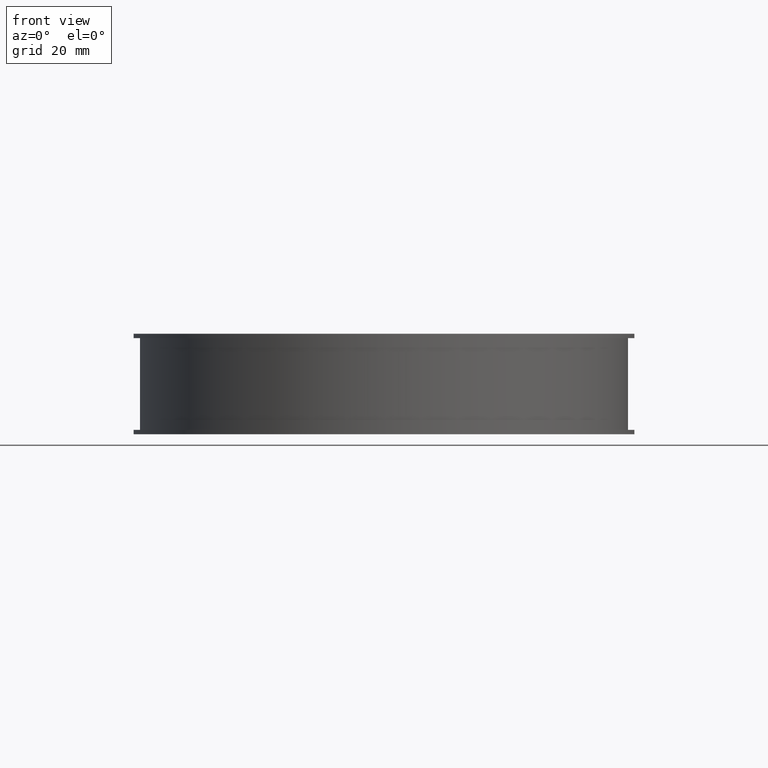
[diagram: clean part render]
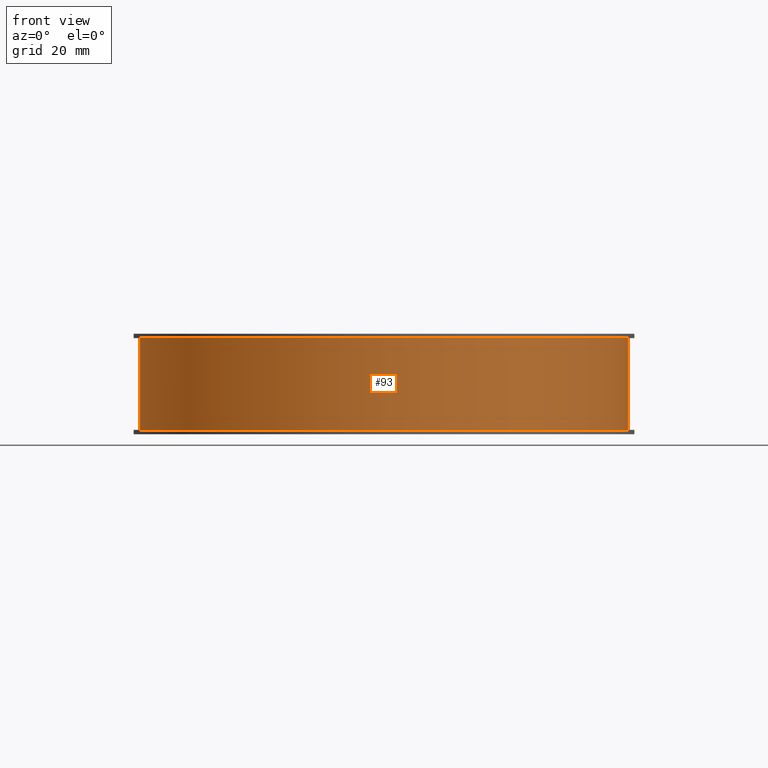
[diagram: same view with one face highlighted and labeled with its STEP entity id]
A machine part, front view. The second image highlights one B-rep face of the part: STEP entity #93.
In plain terms, the highlighted cylindrical surface (partial cylindrical patch) has radius 85.1 mm, axis along (0, 0, -1).
Its self-contained STEP definition (entity closure, byte-faithful):
#93 = ADVANCED_FACE( '', ( #138 ), #139, .T. );
#138 = FACE_OUTER_BOUND( '', #190, .T. );
#139 = CYLINDRICAL_SURFACE( '', #191, 85.1000000000000 );
#190 = EDGE_LOOP( '', ( #372, #373, #374, #375 ) );
#191 = AXIS2_PLACEMENT_3D( '', #376, #377, #378 );
#372 = ORIENTED_EDGE( '', *, *, #445, .F. );
#373 = ORIENTED_EDGE( '', *, *, #495, .F. );
#374 = ORIENTED_EDGE( '', *, *, #486, .T. );
#375 = ORIENTED_EDGE( '', *, *, #494, .T. );
#376 = CARTESIAN_POINT( '', ( 8.67361737988404E-016, 8.32667268468867E-014, -32.0000000000000 ) );
#377 = DIRECTION( '', ( 0.000000000000000, 0.000000000000000, -1.00000000000000 ) );
#378 = DIRECTION( '', ( -0.0900692840646651, -0.995935501961888, 0.000000000000000 ) );
#445 = EDGE_CURVE( '', #531, #533, #534, .T. );
#486 = EDGE_CURVE( '', #601, #599, #602, .T. );
#494 = EDGE_CURVE( '', #599, #533, #614, .T. );
#495 = EDGE_CURVE( '', #601, #531, #615, .T. );
#531 = VERTEX_POINT( '', #665 );
#533 = VERTEX_POINT( '', #667 );
#534 = CIRCLE( '', #668, 85.1000000000000 );
#599 = VERTEX_POINT( '', #758 );
#601 = VERTEX_POINT( '', #760 );
#602 = CIRCLE( '', #761, 85.1000000000000 );
#614 = LINE( '', #776, #777 );
#615 = LINE( '', #778, #779 );
#665 = CARTESIAN_POINT( '', ( -8.33749999999999, 84.6905903495188, 0.000000000000000 ) );
#667 = CARTESIAN_POINT( '', ( 8.33749999999997, 84.6905903495188, 0.000000000000000 ) );
#668 = AXIS2_PLACEMENT_3D( '', #811, #812, #813 );
#758 = CARTESIAN_POINT( '', ( 8.33749999999997, 84.6905903495188, -32.0000000000000 ) );
#760 = CARTESIAN_POINT( '', ( -8.33749999999999, 84.6905903495188, -32.0000000000000 ) );
#761 = AXIS2_PLACEMENT_3D( '', #884, #885, #886 );
#776 = CARTESIAN_POINT( '', ( 8.33749999999997, 84.6905903495188, -32.0000000000000 ) );
#777 = VECTOR( '', #902, 1000.00000000000 );
#778 = CARTESIAN_POINT( '', ( -8.33749999999999, 84.6905903495188, -32.0000000000000 ) );
#779 = VECTOR( '', #903, 1000.00000000000 );
#811 = CARTESIAN_POINT( '', ( 8.67361737988404E-016, 8.32667268468867E-014, 0.000000000000000 ) );
#812 = DIRECTION( '', ( 0.000000000000000, 0.000000000000000, 1.00000000000000 ) );
#813 = DIRECTION( '', ( 1.00000000000000, 0.000000000000000, 0.000000000000000 ) );
#884 = CARTESIAN_POINT( '', ( 8.67361737988404E-016, 8.32667268468867E-014, -32.0000000000000 ) );
#885 = DIRECTION( '', ( 0.000000000000000, 0.000000000000000, 1.00000000000000 ) );
#886 = DIRECTION( '', ( 1.00000000000000, 0.000000000000000, 0.000000000000000 ) );
#902 = DIRECTION( '', ( 0.000000000000000, 0.000000000000000, 1.00000000000000 ) );
#903 = DIRECTION( '', ( 0.000000000000000, 0.000000000000000, 1.00000000000000 ) );